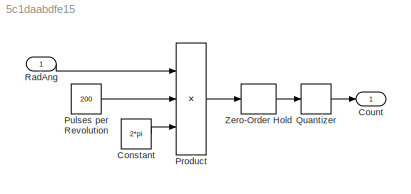
MODEL slx_5c1daabdfe15
KIND model
BLOCK [Constant] Constant
  Value = 2*pi
BLOCK [Outport] Count
  IconDisplay = Port number
BLOCK [Product] Product
  InputSameDT = off
  Inputs = **/
  OutDataTypeStr = Inherit: Inherit via internal rule
  Ports = [3, 1]
  RndMeth = Floor
  SaturateOnIntegerOverflow = off
BLOCK [Constant] Pulses per Revolution 
  Value = 200
BLOCK [Quantizer] Quantizer
  QuantizationInterval = 1
BLOCK [Inport] RadAng
  IconDisplay = Port number
BLOCK [ZeroOrderHold] Zero-Order Hold
  SampleTime = SampleTime
LINE Constant:1 -> Product:3
LINE Product:1 -> Zero-Order Hold:1
LINE Pulses per Revolution :1 -> Product:2
LINE Quantizer:1 -> Count:1
LINE RadAng:1 -> Product:1
LINE Zero-Order Hold:1 -> Quantizer:1
